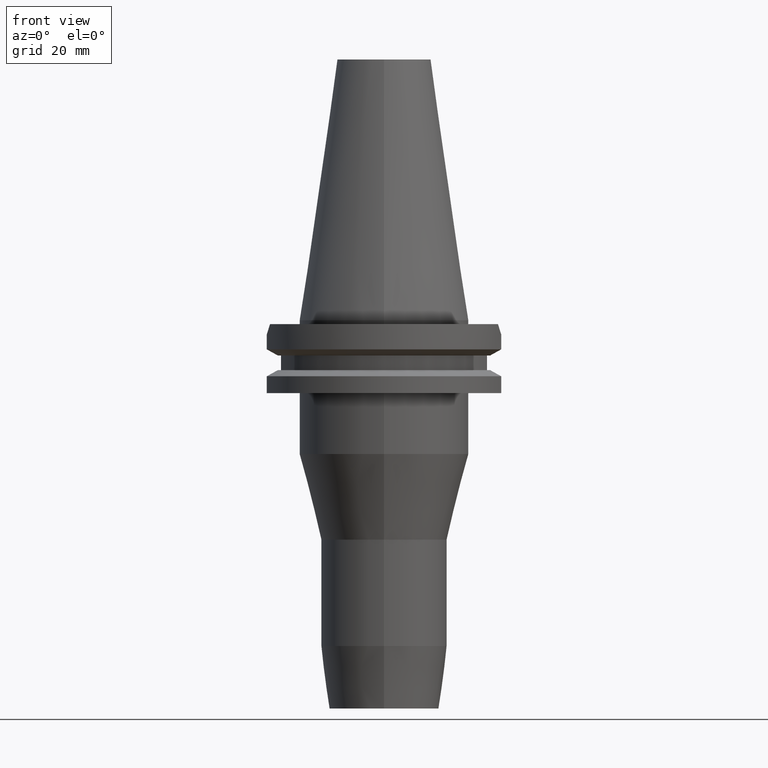
[diagram: clean part render]
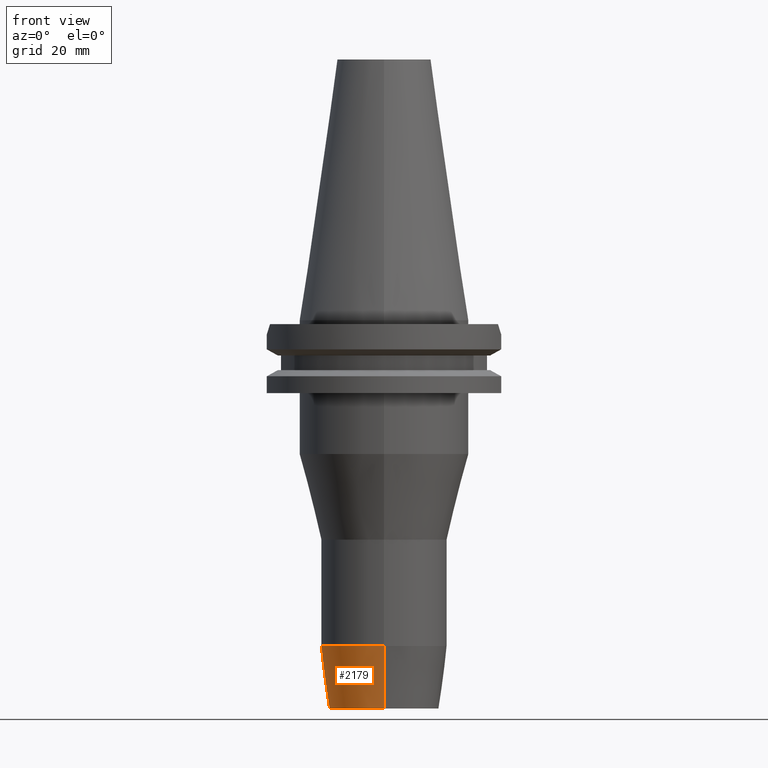
[diagram: same view with one face highlighted and labeled with its STEP entity id]
A machine part, front view. The second image highlights one B-rep face of the part: STEP entity #2179.
In plain terms, the highlighted conical surface has half-angle 7.5 deg.
Its self-contained STEP definition (entity closure, byte-faithful):
#922=DIRECTION('',(0.E0,-1.305261922200E-1,-9.914448613738E-1));
#923=VECTOR('',#922,1.650626562651E1);
#924=CARTESIAN_POINT('',(0.E0,1.65E1,-8.523494776413E1));
#925=LINE('',#924,#923);
#937=CARTESIAN_POINT('',(0.E0,0.E0,-8.523494776413E1));
#938=DIRECTION('',(0.E0,0.E0,1.E0));
#939=DIRECTION('',(0.E0,1.E0,0.E0));
#940=AXIS2_PLACEMENT_3D('',#937,#938,#939);
#945=DIRECTION('',(0.E0,1.305261922200E-1,-9.914448613738E-1));
#946=VECTOR('',#945,1.650626562651E1);
#947=CARTESIAN_POINT('',(0.E0,-1.65E1,-8.523494776413E1));
#948=LINE('',#947,#946);
#960=CARTESIAN_POINT('',(0.E0,0.E0,-1.016E2));
#961=DIRECTION('',(0.E0,0.E0,1.E0));
#962=DIRECTION('',(0.E0,1.E0,0.E0));
#963=AXIS2_PLACEMENT_3D('',#960,#961,#962);
#1314=CARTESIAN_POINT('',(0.E0,-1.43455E1,-1.016E2));
#1315=CARTESIAN_POINT('',(0.E0,1.43455E1,-1.016E2));
#1316=VERTEX_POINT('',#1314);
#1317=VERTEX_POINT('',#1315);
#1318=CARTESIAN_POINT('',(0.E0,1.65E1,-8.523494776413E1));
#1319=VERTEX_POINT('',#1318);
#1320=CARTESIAN_POINT('',(0.E0,-1.65E1,-8.523494776413E1));
#1321=VERTEX_POINT('',#1320);
#2167=CARTESIAN_POINT('',(0.E0,0.E0,-9.341747388207E1));
#2168=DIRECTION('',(0.E0,0.E0,1.E0));
#2169=DIRECTION('',(0.E0,1.E0,0.E0));
#2170=AXIS2_PLACEMENT_3D('',#2167,#2168,#2169);
#2171=CONICAL_SURFACE('',#2170,1.542275E1,7.5E0);
#2172=ORIENTED_EDGE('',*,*,#2157,.F.);
#2173=ORIENTED_EDGE('',*,*,#2134,.T.);
#2174=ORIENTED_EDGE('',*,*,#2161,.T.);
#2176=ORIENTED_EDGE('',*,*,#2175,.F.);
#2177=EDGE_LOOP('',(#2172,#2173,#2174,#2176));
#2178=FACE_OUTER_BOUND('',#2177,.F.);
#941=CIRCLE('',#940,1.65E1);
#964=CIRCLE('',#963,1.43455E1);
#2134=EDGE_CURVE('',#1319,#1321,#941,.T.);
#2157=EDGE_CURVE('',#1319,#1317,#925,.T.);
#2161=EDGE_CURVE('',#1321,#1316,#948,.T.);
#2175=EDGE_CURVE('',#1317,#1316,#964,.T.);
#2179=ADVANCED_FACE('',(#2178),#2171,.T.);